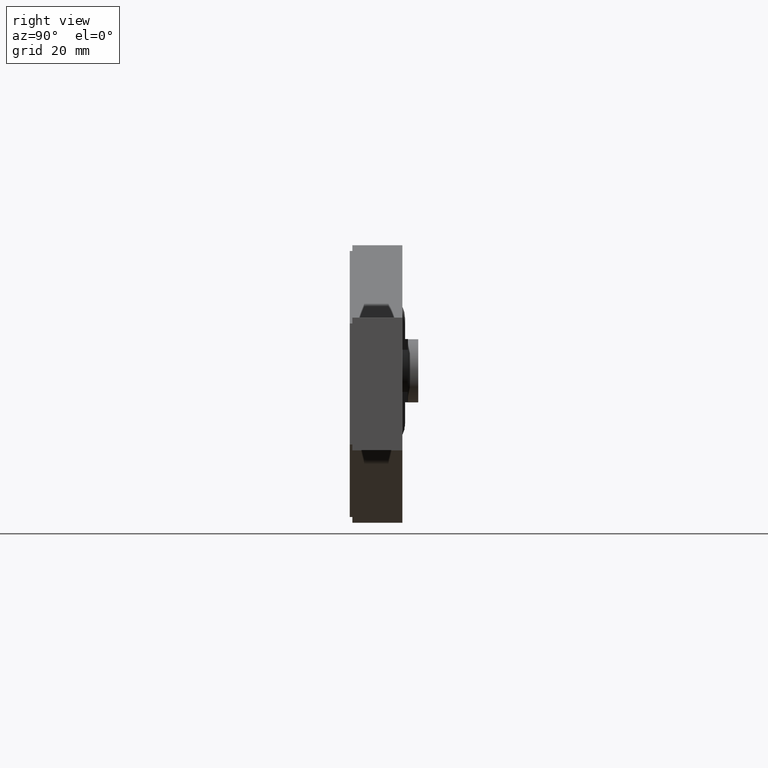
[diagram: clean part render]
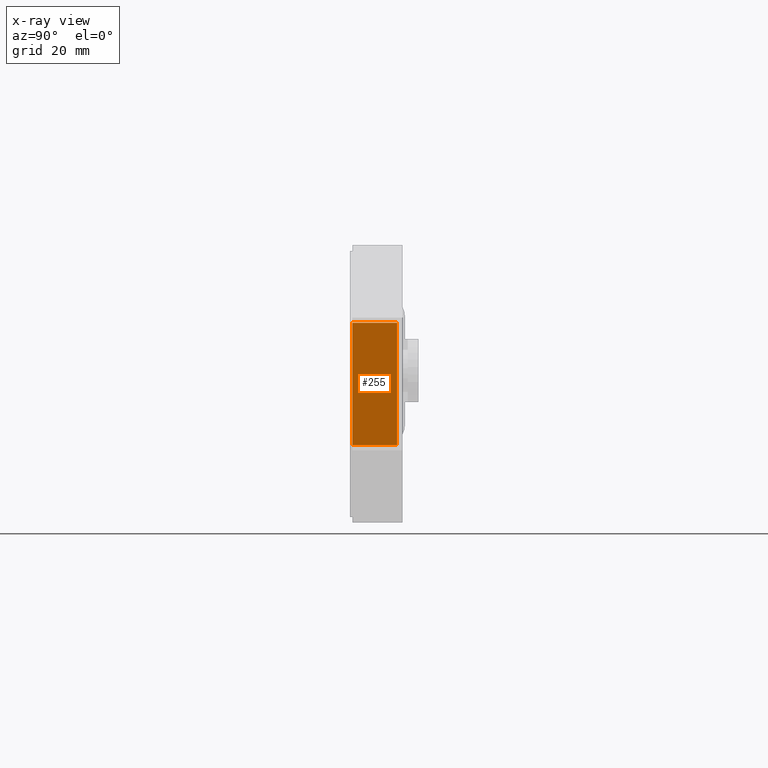
[diagram: x-ray — body ghosted, one internal face saturated and labeled with its STEP entity id]
A machine part, right view, then the same camera in x-ray: the body is ghosted and one INTERNAL B-rep face — a face not visible from any outside direction — is saturated and labeled: STEP entity #255.
In plain terms, the highlighted planar face has unit normal (-1, 0, 0).
Its self-contained STEP definition (entity closure, byte-faithful):
#255=ADVANCED_FACE('',(#731),#730,.T.);
#730=PLANE('',#2349);
#731=FACE_OUTER_BOUND('',#2350,.T.);
#2346=CARTESIAN_POINT('',(8.41000000014E+001,-1.03500000001E+001,-1.04200000019E+001));
#2347=DIRECTION('',(-1.00000000000E+000,0.00000000000E+000,3.03935516562E-012));
#2348=DIRECTION('',(3.03935516562E-012,0.00000000000E+000,1.00000000000E+000));
#2349=AXIS2_PLACEMENT_3D('',#2346,#2347,#2348);
#2350=EDGE_LOOP('',(#3342,#3343,#3344,#3345));
#3342=ORIENTED_EDGE('',*,*,#4110,.F.);
#3343=ORIENTED_EDGE('',*,*,#4162,.F.);
#3344=ORIENTED_EDGE('',*,*,#4176,.T.);
#3345=ORIENTED_EDGE('',*,*,#4216,.T.);
#4110=EDGE_CURVE('',#4645,#4652,#4653,.T.);
#4162=EDGE_CURVE('',#4999,#4645,#5006,.T.);
#4176=EDGE_CURVE('',#4999,#5090,#5097,.T.);
#4216=EDGE_CURVE('',#5090,#4652,#5365,.T.);
#4645=VERTEX_POINT('',#7796);
#4652=VERTEX_POINT('',#7800);
#4653=LINE('',#7801,#7802);
#4999=VERTEX_POINT('',#8007);
#5006=LINE('',#8011,#8012);
#5090=VERTEX_POINT('',#8056);
#5097=LINE('',#8060,#8061);
#5365=LINE('',#8225,#8226);
#7796=CARTESIAN_POINT('',(8.41000000014E+001,-9.50000000005E+000,1.51000000014E+001));
#7800=CARTESIAN_POINT('',(8.41000000014E+001,-9.50000000005E+000,-8.10000000160E+000));
#7801=CARTESIAN_POINT('',(8.41000000014E+001,-9.50000000005E+000,1.51000000014E+001));
#7802=VECTOR('',#7803,2.32000000030E+001);
#7803=DIRECTION('',(-3.03940780551E-012,0.00000000000E+000,-1.00000000000E+000));
#8007=CARTESIAN_POINT('',(8.41000000014E+001,-9.99999999799E-001,1.51000000014E+001));
#8011=CARTESIAN_POINT('',(8.41000000014E+001,-9.99999999799E-001,1.51000000014E+001));
#8012=VECTOR('',#8013,8.50000000025E+000);
#8013=DIRECTION('',(0.00000000000E+000,-1.00000000000E+000,0.00000000000E+000));
#8056=CARTESIAN_POINT('',(8.41000000014E+001,-9.99999999799E-001,-8.10000000160E+000));
#8060=CARTESIAN_POINT('',(8.41000000014E+001,-9.99999999799E-001,1.51000000014E+001));
#8061=VECTOR('',#8062,2.32000000030E+001);
#8062=DIRECTION('',(-3.03940780551E-012,0.00000000000E+000,-1.00000000000E+000));
#8225=CARTESIAN_POINT('',(8.41000000014E+001,-9.99999999799E-001,-8.10000000160E+000));
#8226=VECTOR('',#8227,8.50000000025E+000);
#8227=DIRECTION('',(0.00000000000E+000,-1.00000000000E+000,0.00000000000E+000));